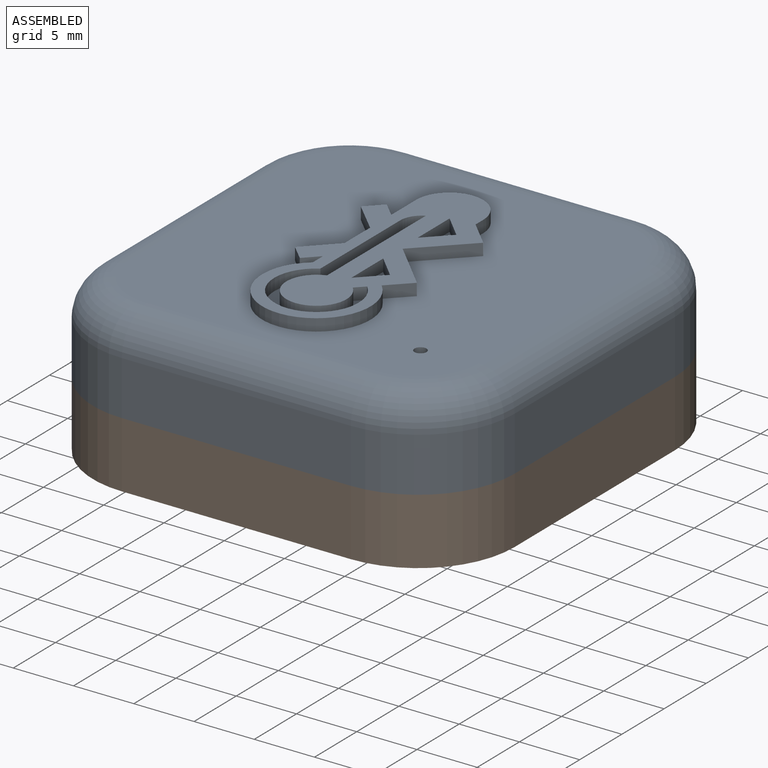
[diagram: assembled view]
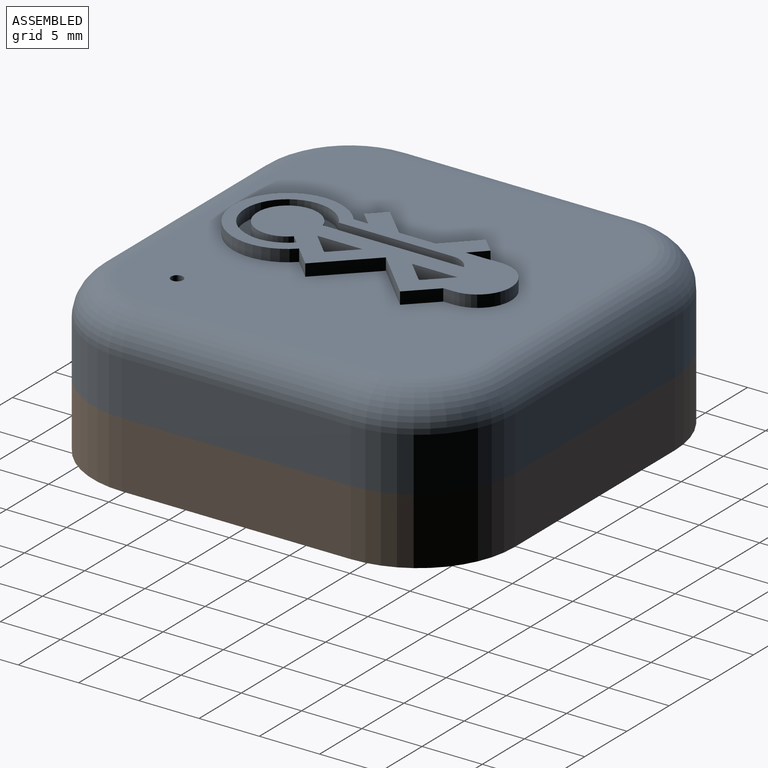
[diagram: assembled view, second angle]
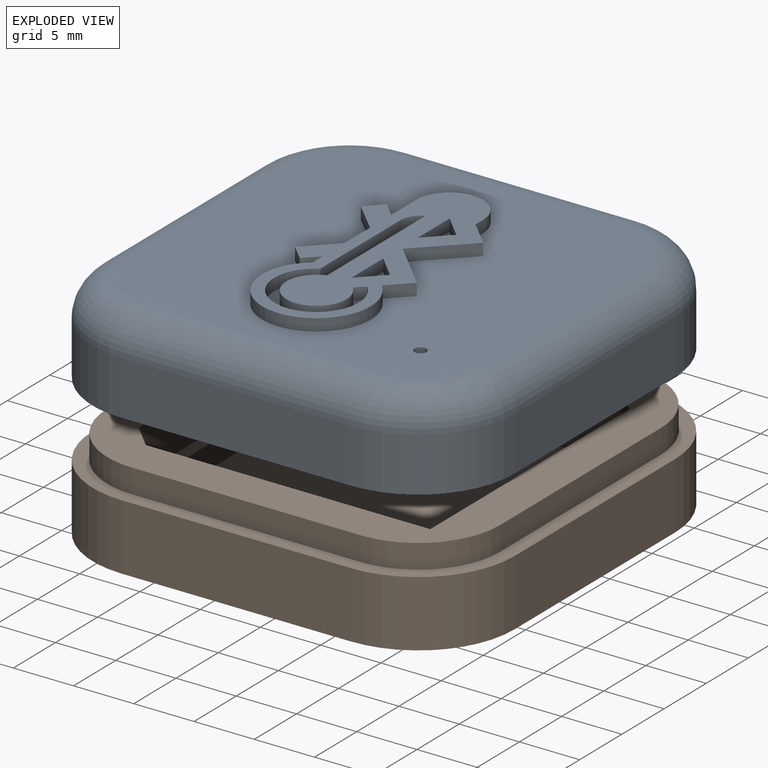
[diagram: exploded view]
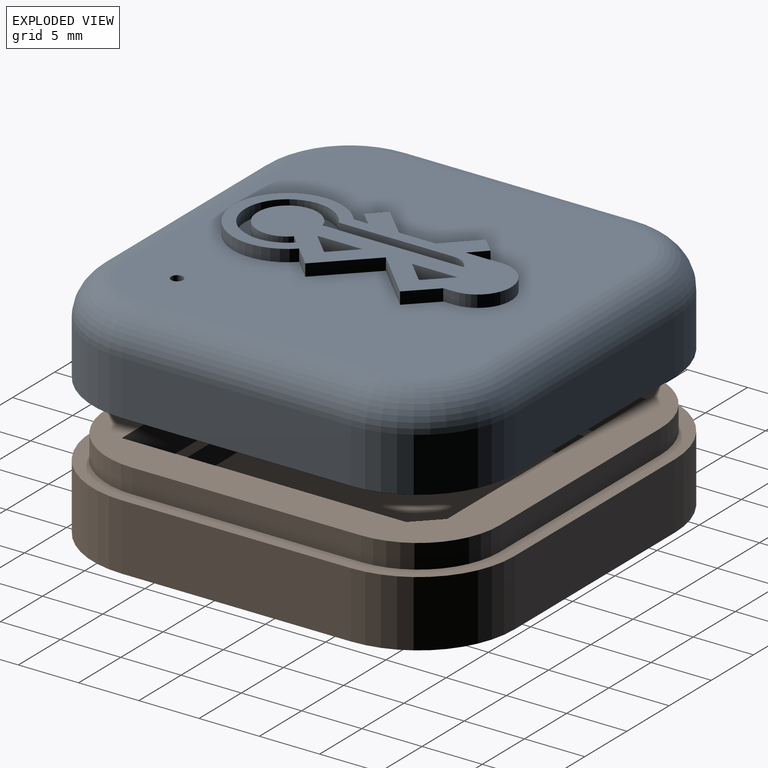
[diagram: exploded view, second angle]
ASSEMBLY  parts=2 mates=2
PART A: 86 faces, bbox 36.3x8.5x36.3 mm
  f0: plane 29x29mm, normal (0,-1,0), area 663.8mm2, adj f10,f11,f12,f13,f14,f15,f16,f17
  f1: cylinder r=8mm len=8mm, axis (0,1,0), area 56.5mm2, adj f6,f7,f9,f10
  f2: cylinder r=8mm len=8mm, axis (0,1,0), area 56.5mm2, adj f7,f8,f9,f12
  f3: cylinder r=8mm len=8mm, axis (0,1,0), area 56.5mm2, adj f4,f8,f9,f14
  f4: plane 19x4.5mm, normal (0,0,1), area 85.5mm2, adj f3,f5,f9,f15
  f5: cylinder r=8mm len=8mm, axis (0,1,0), area 56.5mm2, adj f4,f6,f9,f16
  f6: plane 19x4.5mm, normal (1,0,0), area 85.5mm2, adj f1,f5,f9,f17
  f7: plane 19x4.5mm, normal (0,0,-1), area 85.5mm2, adj f1,f2,f9,f11
  f8: plane 19x4.5mm, normal (-1,0,0), area 85.5mm2, adj f2,f3,f9,f13
  f9: plane 35x35mm, normal (0,1,0), area 147mm2, adj f1,f2,f3,f4,f5,f6,f7,f8
  f10: torus R=5mm, axis (0,-1,0), area 51.1mm2, adj f0,f1,f11,f17
  f11: cylinder r=3mm len=19mm, axis (1,0,0), area 89.5mm2, adj f0,f7,f10,f12
  f12: torus R=5mm, axis (0,-1,0), area 51.1mm2, adj f0,f2,f11,f13
  f13: cylinder r=3mm len=19mm, axis (0,0,-1), area 89.5mm2, adj f0,f8,f12,f14
  f14: torus R=5mm, axis (0,-1,0), area 51.1mm2, adj f0,f3,f13,f15
  f15: cylinder r=3mm len=19mm, axis (-1,0,0), area 89.5mm2, adj f0,f4,f14,f16
  f16: torus R=5mm, axis (0,-1,0), area 51.1mm2, adj f0,f5,f15,f17
  f17: cylinder r=3mm len=19mm, axis (0,0,1), area 89.5mm2, adj f0,f6,f10,f16
  f18: cylinder r=6.8mm len=6.8mm, axis (0,-1,0), area 2.1mm2, adj f9,f20,f33,f34
  f19: cylinder r=7mm len=7mm, axis (0,-1,0), area 22mm2, adj f21,f32,f34,f35
  f20: plane 19x0.2mm, normal (0,0,1), area 3.8mm2, adj f9,f18,f22,f34
  f21: plane 19x2mm, normal (0,0,1), area 38mm2, adj f19,f23,f32,f34
  f22: cylinder r=6.8mm len=6.8mm, axis (0,-1,0), area 2.1mm2, adj f9,f20,f24,f34
  f23: cylinder r=7mm len=7mm, axis (0,-1,0), area 22mm2, adj f21,f25,f32,f34
  f24: plane 19x0.2mm, normal (1,0,0), area 3.8mm2, adj f9,f22,f26,f34
  f25: plane 19x2mm, normal (1,0,0), area 38mm2, adj f23,f27,f32,f34
  f26: cylinder r=6.8mm len=6.8mm, axis (0,-1,0), area 2.1mm2, adj f9,f24,f28,f34
  f27: cylinder r=7mm len=7mm, axis (0,-1,0), area 22mm2, adj f25,f29,f32,f34
  f28: plane 19x0.2mm, normal (0,0,-1), area 3.8mm2, adj f9,f26,f30,f34
  f29: plane 19x2mm, normal (0,0,-1), area 38mm2, adj f27,f31,f32,f34
  f30: cylinder r=6.8mm len=6.8mm, axis (0,-1,0), area 2.1mm2, adj f9,f28,f33,f34
  f31: cylinder r=7mm len=7mm, axis (0,-1,0), area 22mm2, adj f29,f32,f34,f35
  f32: plane 33x33mm, normal (0,1,0), area 59.2mm2, adj f19,f21,f23,f25,f27,f29,f31,f35
  f33: plane 19x0.2mm, normal (-1,0,0), area 3.8mm2, adj f9,f18,f30,f34
  f34: plane 33x33mm, normal (0,-1,0), area 23.9mm2, adj f18,f19,f20,f21,f22,f23,f24,f25
  f35: plane 19x2mm, normal (-1,0,0), area 38mm2, adj f19,f31,f32,f34
  f36: plane 29x29mm, normal (0,1,0), area 818.8mm2, adj f37,f38,f39,f40,f41,f42,f43,f44
  f37: torus R=5mm, axis (0,-1,0), area 22mm2, adj f36,f42,f43,f52
  f38: torus R=5mm, axis (0,-1,0), area 22mm2, adj f36,f43,f44,f51
  f39: torus R=5mm, axis (0,-1,0), area 22mm2, adj f36,f40,f44,f50
  f40: cylinder r=1.5mm len=19mm, axis (-1,0,0), area 44.8mm2, adj f36,f39,f41,f49
  f41: torus R=5mm, axis (0,-1,0), area 22mm2, adj f36,f40,f42,f48
  f42: cylinder r=1.5mm len=19mm, axis (0,0,1), area 44.8mm2, adj f36,f37,f41,f47
  f43: cylinder r=1.5mm len=19mm, axis (1,0,0), area 44.8mm2, adj f36,f37,f38,f45
  f44: cylinder r=1.5mm len=19mm, axis (0,0,-1), area 44.8mm2, adj f36,f38,f39,f46
  f45: plane 19x2.3mm, normal (0,0,1), area 43.7mm2, adj f32,f43,f51,f52
  f46: plane 19x2.3mm, normal (1,0,0), area 43.7mm2, adj f32,f44,f50,f51
  f47: plane 19x2.3mm, normal (-1,0,0), area 43.7mm2, adj f32,f42,f48,f52
  f48: cylinder r=6.5mm len=6.5mm, axis (0,1,0), area 23.5mm2, adj f32,f41,f47,f49
  f49: plane 19x2.3mm, normal (0,0,-1), area 43.7mm2, adj f32,f40,f48,f50
  f50: cylinder r=6.5mm len=6.5mm, axis (0,1,0), area 23.5mm2, adj f32,f39,f46,f49
  f51: cylinder r=6.5mm len=6.5mm, axis (0,1,0), area 23.5mm2, adj f32,f38,f45,f46
  f52: cylinder r=6.5mm len=6.5mm, axis (0,1,0), area 23.5mm2, adj f32,f37,f45,f47
  f53: cylinder r=0.5mm len=1.5mm, axis (0,-1,0), area 4.7mm2, adj f0,f36
  f54: plane 1.89x1.89mm, normal (-0.71,0,0.71), area 2.7mm2, adj f55,f81,f82,f83
  f55: plane 3.77x1mm, normal (1,0,0), area 3.8mm2, adj f54,f81,f82,f83
  f56: plane 1.89x1.89mm, normal (-0.71,0,0.71), area 2.7mm2, adj f57,f78,f82,f85
  f57: plane 3.77x1mm, normal (1,0,0), area 3.8mm2, adj f56,f78,f82,f85
  f58: plane 3.93x3.93mm, normal (0.71,0,-0.71), area 5.6mm2, adj f0,f59,f79,f82
  f59: plane 2.11x2.11mm, normal (0.71,0,0.71), area 3mm2, adj f0,f58,f60,f82
  f60: plane 1x0.9mm, normal (1,0,0), area 0.9mm2, adj f0,f59,f61,f82
  f61: cylinder r=2.79mm len=5.57mm, axis (0,1,0), area 8.8mm2, adj f0,f60,f62,f82
  f62: plane 2.94x1mm, normal (-1,0,0), area 2.9mm2, adj f0,f61,f63,f82
  f63: plane 1.22x1.2mm, normal (0.7,0,0.71), area 1.7mm2, adj f0,f62,f64,f82
  f64: plane 1.27x1.25mm, normal (-0.71,0,0.7), area 1.8mm2, adj f0,f63,f65,f82
  f65: plane 2.47x2.42mm, normal (-0.7,0,-0.71), area 3.5mm2, adj f0,f64,f66,f82
  f66: plane 3.04x1mm, normal (-1,0,0), area 3mm2, adj f0,f65,f67,f82
  f67: plane 2.44x2.4mm, normal (-0.71,0,0.7), area 3.4mm2, adj f0,f66,f68,f82
  f68: plane 1.27x1.25mm, normal (-0.7,0,-0.71), area 1.8mm2, adj f0,f67,f69,f82
  f69: plane 1.14x1.12mm, normal (0.71,0,-0.7), area 1.6mm2, adj f0,f68,f70,f82
  f70: plane 1.21x1mm, normal (-1,0,0), area 1.2mm2, adj f0,f69,f71,f82
  f71: cylinder r=4.5mm len=9mm, axis (0,1,0), area 21.7mm2, adj f0,f70,f72,f82
  f72: plane 1.72x1.72mm, normal (0.71,0,-0.71), area 2.4mm2, adj f0,f71,f79,f82
  f73: cylinder r=2.5mm len=5mm, axis (0,1,0), area 12.9mm2, adj f74,f80,f82,f84
  f74: plane 1x0.71mm, normal (0.71,0,-0.71), area 1mm2, adj f73,f75,f82,f84
  f75: cylinder r=3.5mm len=7mm, axis (0,1,0), area 17.4mm2, adj f74,f76,f82,f84
  f76: plane 9.47x1mm, normal (1,0,0), area 9.5mm2, adj f75,f77,f82,f84
  f77: cylinder r=1.79mm len=1.6mm, axis (0,1,0), area 2mm2, adj f76,f80,f82,f84
  f78: plane 1.89x1.89mm, normal (-0.71,0,-0.71), area 2.7mm2, adj f56,f57,f82,f85
  f79: plane 3.93x3.93mm, normal (0.71,0,0.71), area 5.6mm2, adj f0,f58,f72,f82
  f80: plane 11.71x1mm, normal (-1,0,0), area 11.7mm2, adj f73,f77,f82,f84
  f81: plane 1.89x1.89mm, normal (-0.71,0,-0.71), area 2.7mm2, adj f54,f55,f82,f83
  f82: plane 23.06x10.16mm, normal (0,-1,0), area 121.7mm2, adj f54,f55,f56,f57,f58,f59,f60,f61
  f83: plane 3.77x1.89mm, normal (0,-1,0), area 3.6mm2, adj f54,f55,f81
  f84: plane 17.58x7mm, normal (0,-1,0), area 26.1mm2, adj f73,f74,f75,f76,f77,f80
  f85: plane 3.77x1.89mm, normal (0,-1,0), area 3.6mm2, adj f56,f57,f78
PART B: 36 faces, bbox 35x7.5x35 mm
  f0: plane 24.6x23.6mm, normal (0,-1,0), area 572.6mm2, adj f6,f8,f9,f10,f11,f12,f13,f14
  f1: plane 23.6x3.6mm, normal (1,0,0), area 85mm2, adj f2,f5,f7,f25
  f2: plane 23.6x3.6mm, normal (0,0,-1), area 85mm2, adj f1,f3,f7,f25
  f3: plane 3.6x2mm, normal (-0.71,0,-0.71), area 10.2mm2, adj f2,f4,f7,f25
  f4: plane 23.6x3.6mm, normal (-1,0,0), area 85mm2, adj f3,f6,f7,f25
  f5: plane 3.6x2mm, normal (0.71,0,0.71), area 10.2mm2, adj f1,f6,f7,f25
  f6: plane 23.6x5.5mm, normal (0,0,1), area 118.4mm2, adj f0,f4,f5,f7,f8,f9,f25
  f7: plane 25.6x25.6mm, normal (0,-1,0), area 78.8mm2, adj f1,f2,f3,f4,f5,f6,f8,f9
  f8: plane 1.9x1mm, normal (-1,0,0), area 1.9mm2, adj f0,f6,f7,f15
  f9: plane 1.9x1mm, normal (1,0,0), area 1.9mm2, adj f0,f6,f7,f10
  f10: plane 1.9x1.59mm, normal (0,0,1), area 3mm2, adj f0,f7,f9,f11
  f11: plane 1.9x1.41mm, normal (0.71,0,0.71), area 3.8mm2, adj f0,f7,f10,f12
  f12: plane 22.19x1.9mm, normal (1,0,0), area 42.2mm2, adj f0,f7,f11,f13
  f13: plane 22.19x1.9mm, normal (0,0,-1), area 42.2mm2, adj f0,f7,f12,f14
  f14: plane 1.9x1.41mm, normal (-0.71,0,-0.71), area 3.8mm2, adj f0,f7,f13,f16
  f15: plane 3x1.9mm, normal (0,0,1), area 5.7mm2, adj f0,f7,f8,f16
  f16: plane 22.19x1.9mm, normal (-1,0,0), area 42.2mm2, adj f0,f7,f14,f15
  f17: plane 19x2mm, normal (0,0,-1), area 38mm2, adj f18,f24,f25,f35
  f18: cylinder r=6.8mm len=6.8mm, axis (0,1,0), area 21.4mm2, adj f17,f19,f25,f35
  f19: plane 19x2mm, normal (1,0,0), area 38mm2, adj f18,f20,f25,f35
  f20: cylinder r=6.8mm len=6.8mm, axis (0,1,0), area 21.4mm2, adj f19,f21,f25,f35
  f21: plane 19x2mm, normal (0,0,1), area 38mm2, adj f20,f22,f25,f35
  f22: cylinder r=6.8mm len=6.8mm, axis (0,1,0), area 21.4mm2, adj f21,f23,f25,f35
  f23: plane 19x2mm, normal (-1,0,0), area 38mm2, adj f22,f24,f25,f35
  f24: cylinder r=6.8mm len=6.8mm, axis (0,1,0), area 21.4mm2, adj f17,f23,f25,f35
  f25: plane 32.6x32.6mm, normal (0,-1,0), area 371.7mm2, adj f1,f2,f3,f4,f5,f6,f17,f18
  f26: plane 35x35mm, normal (0,1,0), area 1170.1mm2, adj f27,f28,f29,f30,f31,f32,f33,f34
  f27: plane 19x5.5mm, normal (0,0,-1), area 104.5mm2, adj f26,f28,f34,f35
  f28: cylinder r=8mm len=8mm, axis (0,1,0), area 69.1mm2, adj f26,f27,f29,f35
  f29: plane 19x5.5mm, normal (-1,0,0), area 104.5mm2, adj f26,f28,f30,f35
  f30: cylinder r=8mm len=8mm, axis (0,1,0), area 69.1mm2, adj f26,f29,f31,f35
  f31: plane 19x5.5mm, normal (0,0,1), area 104.5mm2, adj f26,f30,f32,f35
  f32: cylinder r=8mm len=8mm, axis (0,1,0), area 69.1mm2, adj f26,f31,f33,f35
  f33: plane 19x5.5mm, normal (1,0,0), area 104.5mm2, adj f26,f32,f34,f35
  f34: cylinder r=8mm len=8mm, axis (0,1,0), area 69.1mm2, adj f26,f27,f33,f35
  f35: plane 35x35mm, normal (0,-1,0), area 147mm2, adj f17,f18,f19,f20,f21,f22,f23,f24
PLACE A rot(axis=(-1,0,0),90deg) t=(12.8,12.8,-5.39)mm
PLACE B rot(axis=(0,0.71,-0.71),180deg) t=(12.8,12.8,-5.39)mm
MATE planar B.f35 <-> A.f9  axis (0,0,1) through (12.8,12.8,0.11)mm
MATE parallel A.f4 <-> B.f27  axis (0,1,0) through (12.8,30.3,2.36)mm
